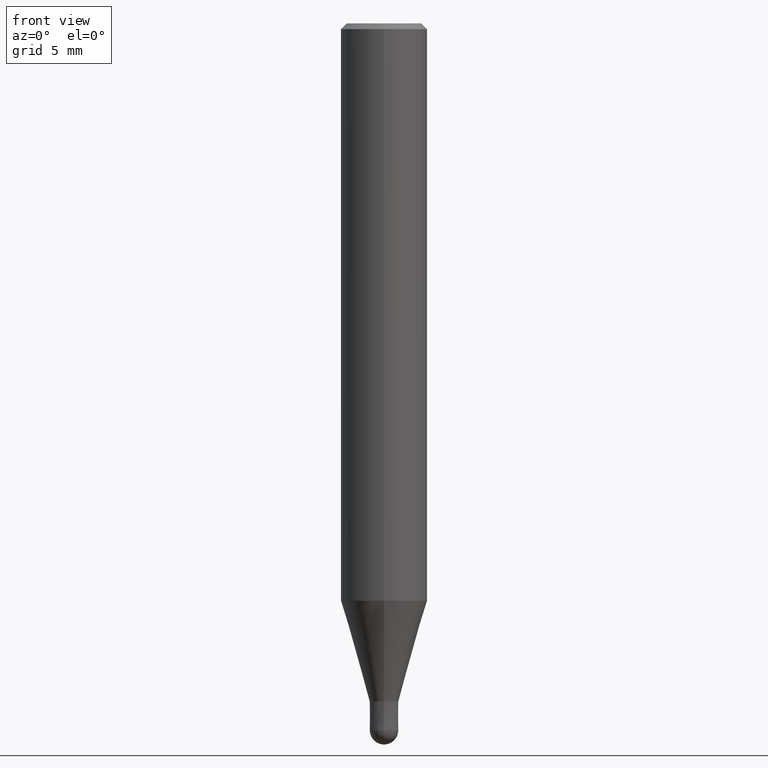
[diagram: clean part render]
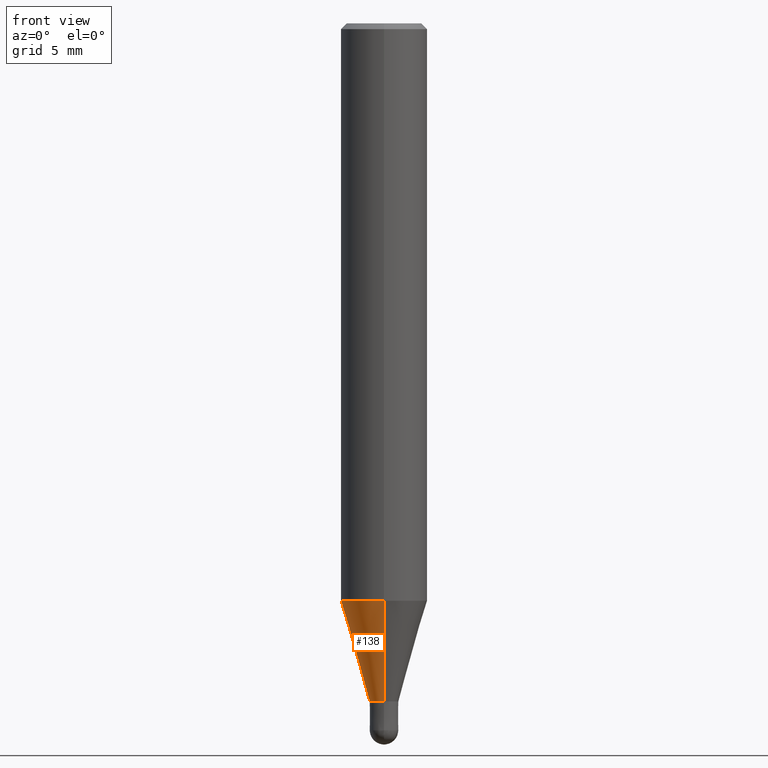
[diagram: same view with one face highlighted and labeled with its STEP entity id]
A machine part, front view. The second image highlights one B-rep face of the part: STEP entity #138.
In plain terms, the highlighted conical surface has half-angle 16 deg.
Its self-contained STEP definition (entity closure, byte-faithful):
#98=VERTEX_POINT('',#229);
#108=EDGE_CURVE('',#112,#160,#239,.T.);
#112=VERTEX_POINT('',#243);
#114=EDGE_CURVE('',#154,#160,#245,.T.);
#138=ADVANCED_FACE('',(#271),#272,.T.);
#140=EDGE_CURVE('',#98,#154,#274,.T.);
#142=EDGE_CURVE('',#112,#98,#276,.T.);
#154=VERTEX_POINT('',#290);
#160=VERTEX_POINT('',#297);
#229=CARTESIAN_POINT('',(3.67375783114944E-016,-2.99995,-40.025));
#239=CIRCLE('',#376,0.99995);
#243=CARTESIAN_POINT('',(1.22454512350469E-016,-0.99995,-47.0));
#245=LINE('',#384,#385);
#271=FACE_OUTER_BOUND('',#414,.T.);
#272=CONICAL_SURFACE('',#415,1.99995,0.279246180255813);
#274=CIRCLE('',#418,2.99995);
#276=LINE('',#421,#422);
#290=CARTESIAN_POINT('',(0.0,2.99995,-40.025));
#297=CARTESIAN_POINT('',(0.0,0.99995,-47.0));
#376=AXIS2_PLACEMENT_3D('',#536,#537,#538);
#384=CARTESIAN_POINT('',(-2.44915147732706E-016,1.99995,-43.5125));
#385=VECTOR('',#542,1.0);
#414=EDGE_LOOP('',(#570,#571,#572,#573));
#415=AXIS2_PLACEMENT_3D('',#574,#575,#576);
#418=AXIS2_PLACEMENT_3D('',#577,#578,#579);
#421=CARTESIAN_POINT('',(2.44915147732706E-016,-1.99995,-43.5125));
#422=VECTOR('',#580,1.0);
#536=CARTESIAN_POINT('',(0.0,0.0,-47.0));
#537=DIRECTION('',(0.0,0.0,-1.0));
#538=DIRECTION('',(0.0,1.0,0.0));
#542=DIRECTION('',(3.37539605616001E-017,-0.275631107549324,-0.961263487578267));
#570=ORIENTED_EDGE('',*,*,#114,.T.);
#571=ORIENTED_EDGE('',*,*,#108,.F.);
#572=ORIENTED_EDGE('',*,*,#142,.T.);
#573=ORIENTED_EDGE('',*,*,#140,.T.);
#574=CARTESIAN_POINT('',(0.0,0.0,-43.5125));
#575=DIRECTION('',(-0.0,-0.0,1.0));
#576=DIRECTION('',(0.0,1.0,0.0));
#577=CARTESIAN_POINT('',(0.0,0.0,-40.025));
#578=DIRECTION('',(0.0,0.0,-1.0));
#579=DIRECTION('',(0.0,1.0,0.0));
#580=DIRECTION('',(3.37539605616001E-017,-0.275631107549324,0.961263487578267));